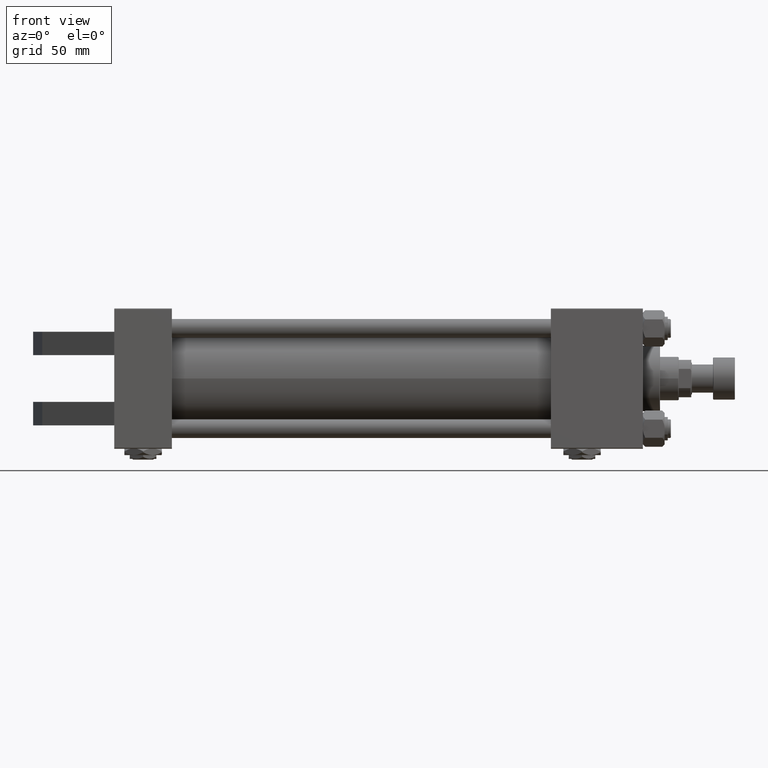
[diagram: clean part render]
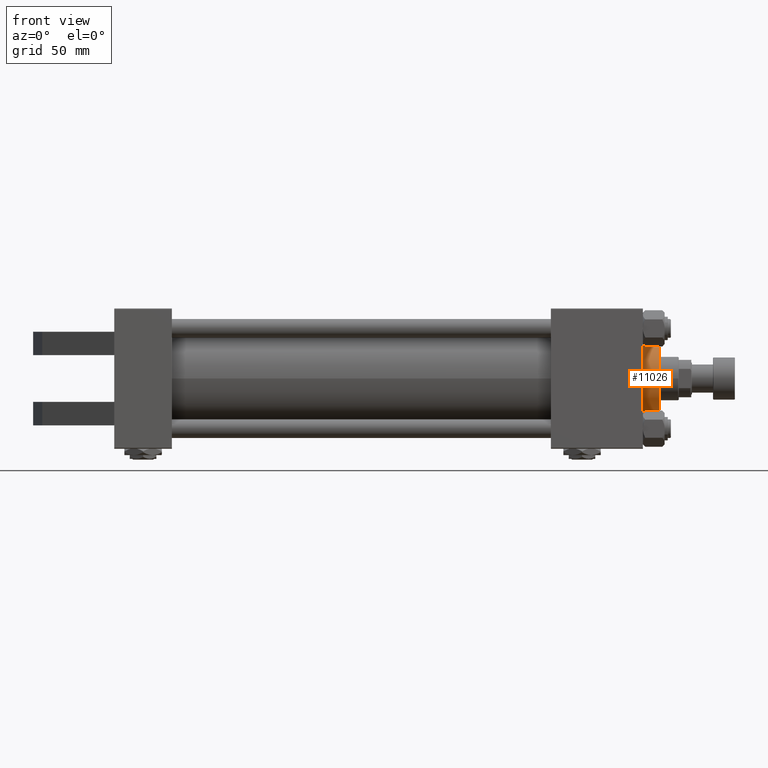
[diagram: same view with one face highlighted and labeled with its STEP entity id]
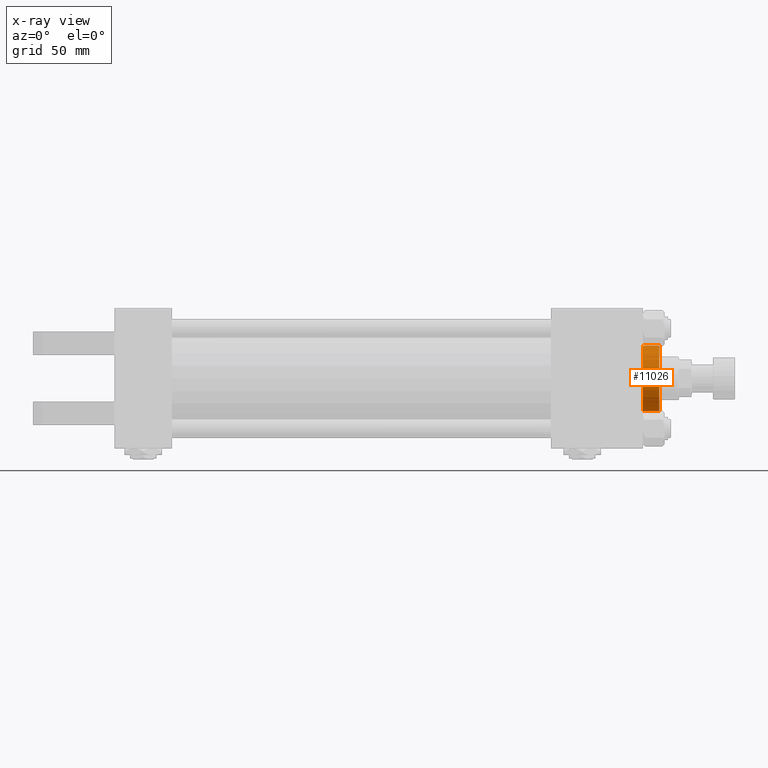
[diagram: x-ray of the same camera — body ghosted, the highlighted face saturated]
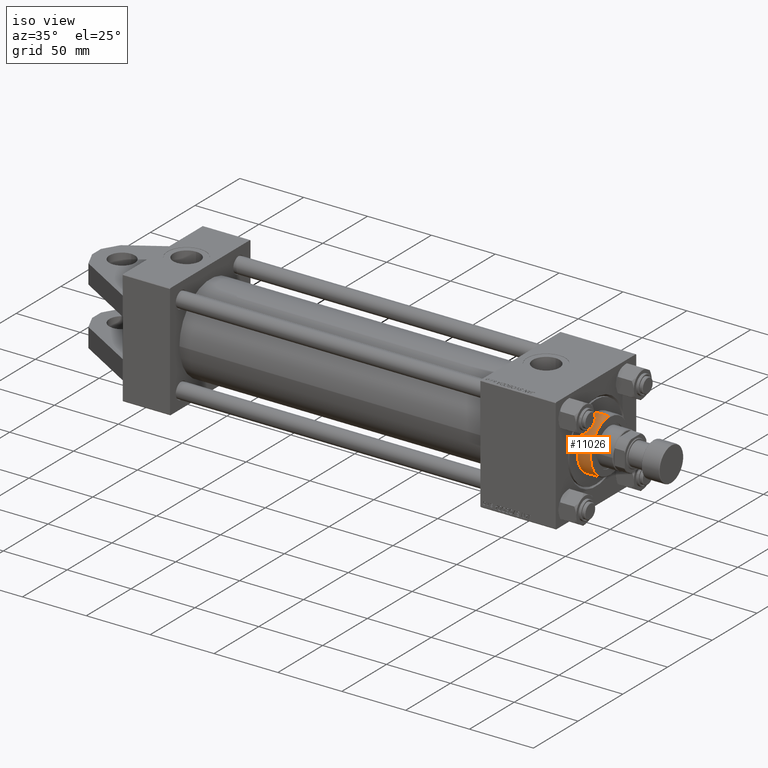
[diagram: same view with one face highlighted and labeled with its STEP entity id]
A machine part, front view. The second image highlights one B-rep face of the part: STEP entity #11026.
The next image is the same camera in x-ray: the body ghosted, the highlighted face saturated — about 0% of this face is hidden behind the body in this view.
A second angle (iso view) of the same face is appended — the face is thin or edge-on in the first view.
In plain terms, the highlighted cylindrical surface (edge-blend (fillet) strip) has radius 21 mm, axis along (-1, 0, 0).
Its self-contained STEP definition (entity closure, byte-faithful):
#826 = CARTESIAN_POINT ( 'NONE',  ( 21.00000000000000000, 2.571758278209441661E-15, 39.69999999999999574 ) ) ;
#1081 = LINE ( 'NONE', #826, #45395 ) ;
#1454 = DIRECTION ( 'NONE',  ( 0.000000000000000000, 0.000000000000000000, 1.000000000000000000 ) ) ;
#1716 = DIRECTION ( 'NONE',  ( 1.000000000000000000, 0.000000000000000000, 0.000000000000000000 ) ) ;
#3865 = DIRECTION ( 'NONE',  ( 0.000000000000000000, 0.000000000000000000, -1.000000000000000000 ) ) ;
#8047 = CIRCLE ( 'NONE', #51914, 21.00000000000000000 ) ;
#11026 = ADVANCED_FACE ( 'NONE', ( #39145 ), #19064, .T. ) ;
#11057 = AXIS2_PLACEMENT_3D ( 'NONE', #23984, #3865, #20029 ) ;
#14948 = ORIENTED_EDGE ( 'NONE', *, *, #40852, .T. ) ;
#16137 = VERTEX_POINT ( 'NONE', #20359 ) ;
#16306 = VERTEX_POINT ( 'NONE', #17701 ) ;
#17701 = CARTESIAN_POINT ( 'NONE',  ( -21.00000000000000000, 0.000000000000000000, 39.19999999999999574 ) ) ;
#19064 = CYLINDRICAL_SURFACE ( 'NONE', #45325, 21.00000000000000000 ) ;
#19574 = DIRECTION ( 'NONE',  ( -1.000000000000000000, 0.000000000000000000, 0.000000000000000000 ) ) ;
#20029 = DIRECTION ( 'NONE',  ( 1.000000000000000000, 0.000000000000000000, 0.000000000000000000 ) ) ;
#20359 = CARTESIAN_POINT ( 'NONE',  ( 21.00000000000000000, 2.571758278209441661E-15, 39.19999999999999574 ) ) ;
#22604 = CARTESIAN_POINT ( 'NONE',  ( 21.00000000000000000, 2.571758278209441661E-15, 28.69999999999999929 ) ) ;
#23984 = CARTESIAN_POINT ( 'NONE',  ( 0.000000000000000000, 0.000000000000000000, 39.19999999999999574 ) ) ;
#24480 = EDGE_CURVE ( 'NONE', #16306, #41357, #48182, .T. ) ;
#25217 = DIRECTION ( 'NONE',  ( -0.000000000000000000, -0.000000000000000000, -1.000000000000000000 ) ) ;
#25697 = DIRECTION ( 'NONE',  ( -0.000000000000000000, -0.000000000000000000, -1.000000000000000000 ) ) ;
#26163 = CARTESIAN_POINT ( 'NONE',  ( -21.00000000000000000, 0.000000000000000000, 28.69999999999999929 ) ) ;
#27769 = DIRECTION ( 'NONE',  ( -0.000000000000000000, -0.000000000000000000, -1.000000000000000000 ) ) ;
#28132 = CARTESIAN_POINT ( 'NONE',  ( -21.00000000000000000, 0.000000000000000000, 39.69999999999999574 ) ) ;
#30963 = CARTESIAN_POINT ( 'NONE',  ( 0.000000000000000000, 0.000000000000000000, 39.69999999999999574 ) ) ;
#33116 = EDGE_CURVE ( 'NONE', #16137, #38388, #1081, .T. ) ;
#33698 = ORIENTED_EDGE ( 'NONE', *, *, #24480, .T. ) ;
#33956 = ORIENTED_EDGE ( 'NONE', *, *, #33116, .F. ) ;
#37644 = VECTOR ( 'NONE', #25217, 1000.000000000000000 ) ;
#38388 = VERTEX_POINT ( 'NONE', #22604 ) ;
#39145 = FACE_OUTER_BOUND ( 'NONE', #43241, .T. ) ;
#40852 = EDGE_CURVE ( 'NONE', #16137, #16306, #47315, .T. ) ;
#41357 = VERTEX_POINT ( 'NONE', #26163 ) ;
#43241 = EDGE_LOOP ( 'NONE', ( #33956, #14948, #33698, #46125 ) ) ;
#45325 = AXIS2_PLACEMENT_3D ( 'NONE', #30963, #27769, #19574 ) ;
#45395 = VECTOR ( 'NONE', #25697, 1000.000000000000000 ) ;
#45862 = CARTESIAN_POINT ( 'NONE',  ( 0.000000000000000000, 0.000000000000000000, 28.69999999999999929 ) ) ;
#46125 = ORIENTED_EDGE ( 'NONE', *, *, #47342, .T. ) ;
#47315 = CIRCLE ( 'NONE', #11057, 21.00000000000000000 ) ;
#47342 = EDGE_CURVE ( 'NONE', #41357, #38388, #8047, .T. ) ;
#48182 = LINE ( 'NONE', #28132, #37644 ) ;
#51914 = AXIS2_PLACEMENT_3D ( 'NONE', #45862, #1454, #1716 ) ;